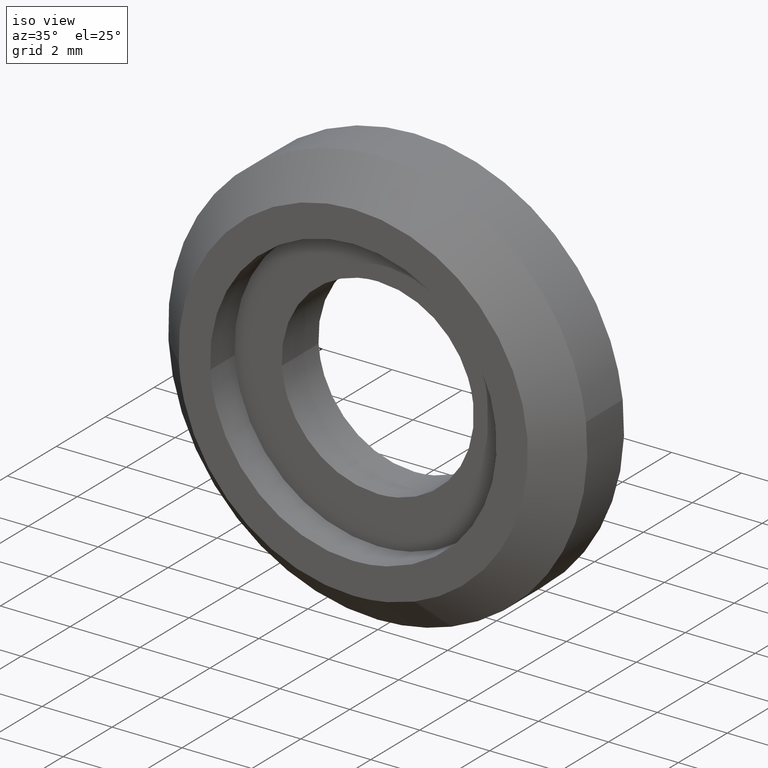
[diagram: clean part render]
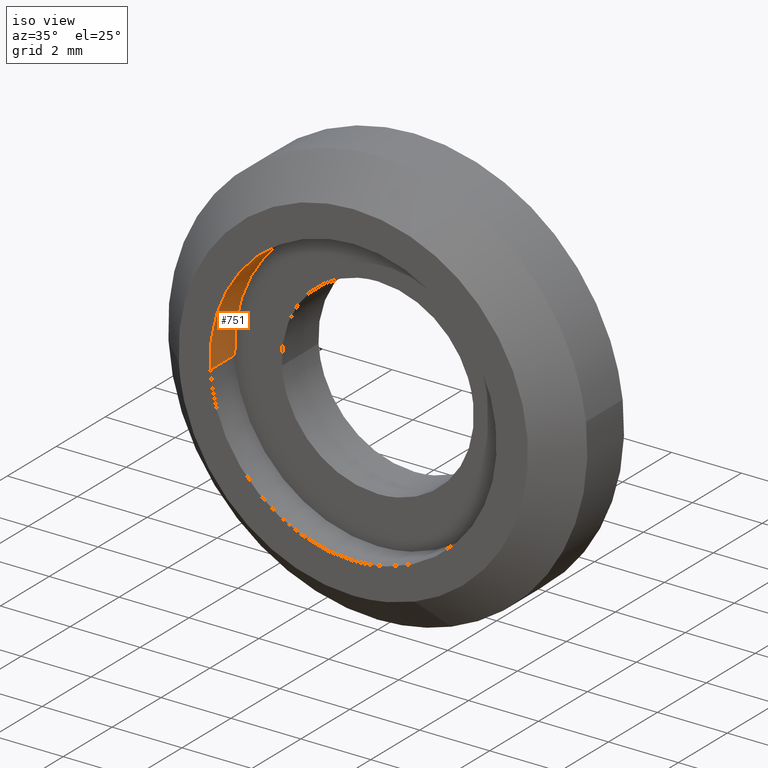
[diagram: same view with one face highlighted and labeled with its STEP entity id]
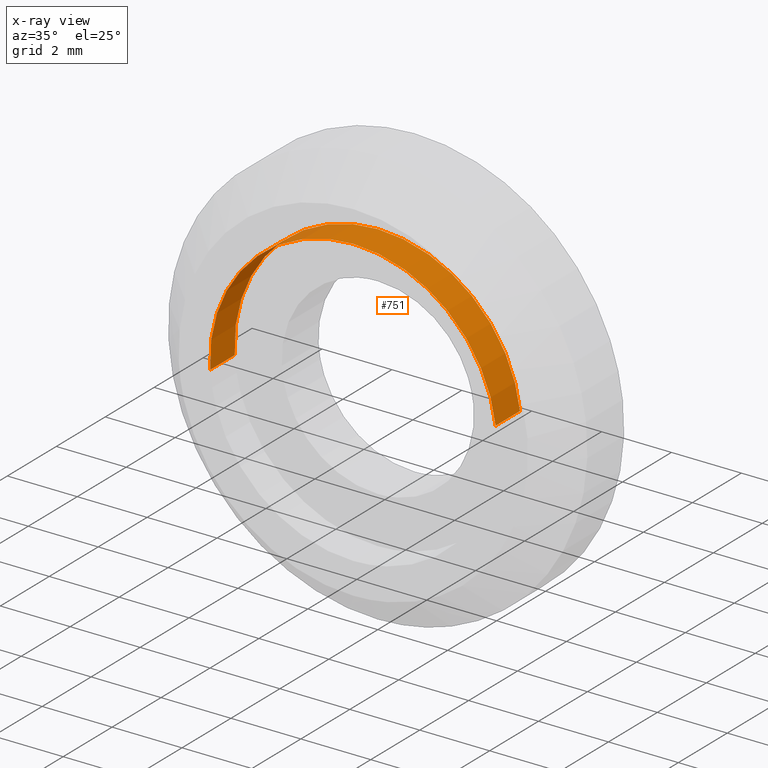
[diagram: x-ray of the same camera — body ghosted, the highlighted face saturated]
A machine part, iso view. The second image highlights one B-rep face of the part: STEP entity #751.
The next image is the same camera in x-ray: the body ghosted, the highlighted face saturated — about 0% of this face is hidden behind the body in this view.
In plain terms, the highlighted face is a freeform B-spline surface patch.
Its self-contained STEP definition (entity closure, byte-faithful):
#588=CARTESIAN_POINT('',(4.071339481019626,4.606795E-014,0.483936804012672));
#589=VERTEX_POINT('',#588);
#607=CARTESIAN_POINT('',(-4.092352866307658,-4.467954E-014,-0.250295860160577));
#608=VERTEX_POINT('',#607);
#622=CARTESIAN_POINT('',(-4.092352863930728,-1.0,-0.250295899024020));
#623=VERTEX_POINT('',#622);
#624=CARTESIAN_POINT('',(-4.092352863930728,-1.0,-0.250295899024020));
#625=CARTESIAN_POINT('',(-4.092352866307658,-4.467954E-014,-0.250295860160577));
#626=QUASI_UNIFORM_CURVE('',1,(#624,#625),.UNSPECIFIED.,.F.,.U.);
#627=EDGE_CURVE('',#623,#608,#626,.T.);
#644=CARTESIAN_POINT('',(4.071339475799119,-1.0,0.483936847932902));
#645=VERTEX_POINT('',#644);
#661=CARTESIAN_POINT('',(4.071339475799119,-1.0,0.483936847932902));
#662=CARTESIAN_POINT('',(4.071339481019626,4.606795E-014,0.483936804012672));
#663=QUASI_UNIFORM_CURVE('',1,(#661,#662),.UNSPECIFIED.,.F.,.U.);
#664=EDGE_CURVE('',#645,#589,#663,.T.);
#669=CARTESIAN_POINT('',(-4.092352673529653,-1.025000000000000,-0.250299012092914));
#670=CARTESIAN_POINT('',(-4.342651685622566,-1.025000000000000,3.842053661436740));
#671=CARTESIAN_POINT('',(-0.250299012092914,-1.025000000000000,4.092352673529653));
#672=CARTESIAN_POINT('',(3.614328312441953,-1.025000000000000,4.328723406603362));
#673=CARTESIAN_POINT('',(4.071339058091032,-1.025000000000000,0.483940362092710));
#674=CARTESIAN_POINT('',(-4.092352673529653,0.025625000000000,-0.250299012092914));
#675=CARTESIAN_POINT('',(-4.342651685622566,0.025625000000000,3.842053661436740));
#676=CARTESIAN_POINT('',(-0.250299012092914,0.025625000000000,4.092352673529653));
#677=CARTESIAN_POINT('',(3.614328312441953,0.025625000000000,4.328723406603362));
#678=CARTESIAN_POINT('',(4.071339058091032,0.025625000000000,0.483940362092710));
#686=(BOUNDED_SURFACE()B_SPLINE_SURFACE(2,1,((#669,#674),(#670,#675),(#671,#676),(#672,#677),(#673,#678)),.UNSPECIFIED.,.F.,.F.,.U.)B_SPLINE_SURFACE_WITH_KNOTS((3,2,3),(2,2),(0.0,6.793102422918757,13.314480748920760),(0.0,1.0),.UNSPECIFIED.)GEOMETRIC_REPRESENTATION_ITEM()RATIONAL_B_SPLINE_SURFACE(((1.0,1.0),(0.707106781186548,0.707106781186548),(1.0,1.0),(0.718822509939086,0.718822509939086),(0.977505800795127,0.977505800795127)))REPRESENTATION_ITEM('')SURFACE());
#687=CARTESIAN_POINT('',(0.0,0.0,4.100000000000001));
#688=VERTEX_POINT('',#687);
#689=CARTESIAN_POINT('',(0.0,0.0,4.100000000000001));
#690=CARTESIAN_POINT('',(3.641518761247744,0.0,4.100000000000001));
#691=CARTESIAN_POINT('',(4.071339481019626,4.606795E-014,0.483936804012673));
#699=(BOUNDED_CURVE()B_SPLINE_CURVE(2,(#689,#690,#691),.UNSPECIFIED.,.F.,.U.)B_SPLINE_CURVE_WITH_KNOTS((3,3),(0.0,0.229562621213272),.UNSPECIFIED.)CURVE()GEOMETRIC_REPRESENTATION_ITEM()RATIONAL_B_SPLINE_CURVE((1.0,0.731050659814366,0.956027043681484))REPRESENTATION_ITEM(''));
#700=EDGE_CURVE('',#688,#589,#699,.T.);
#701=ORIENTED_EDGE('',*,*,#700,.T.);
#702=ORIENTED_EDGE('',*,*,#664,.F.);
#703=CARTESIAN_POINT('',(0.0,-1.0,4.100000000000001));
#704=VERTEX_POINT('',#703);
#705=CARTESIAN_POINT('',(0.0,-1.0,4.100000000000001));
#706=CARTESIAN_POINT('',(3.641518721687739,-1.0,4.100000000000001));
#707=CARTESIAN_POINT('',(4.071339475799119,-1.0,0.483936847932902));
#715=(BOUNDED_CURVE()B_SPLINE_CURVE(2,(#705,#706,#707),.UNSPECIFIED.,.F.,.U.)B_SPLINE_CURVE_WITH_KNOTS((3,3),(0.0,0.229562619390121),.UNSPECIFIED.)CURVE()GEOMETRIC_REPRESENTATION_ITEM()RATIONAL_B_SPLINE_CURVE((1.0,0.731050661950319,0.956027040108030))REPRESENTATION_ITEM(''));
#716=EDGE_CURVE('',#704,#645,#715,.T.);
#717=ORIENTED_EDGE('',*,*,#716,.F.);
#718=CARTESIAN_POINT('',(-4.092352863930728,-1.0,-0.250295899024020));
#719=CARTESIAN_POINT('',(-4.100000000000001,-1.0,-0.125264768625487));
#720=CARTESIAN_POINT('',(-4.100000000000001,-1.0,0.0));
#721=CARTESIAN_POINT('',(-4.100000000000001,-1.0,4.100000000000001));
#722=CARTESIAN_POINT('',(0.0,-1.0,4.100000000000001));
#730=(BOUNDED_CURVE()B_SPLINE_CURVE(2,(#718,#719,#720,#721,#722),.UNSPECIFIED.,.F.,.U.)B_SPLINE_CURVE_WITH_KNOTS((3,2,3),(0.739333093499008,0.750000000000000,1.0),.UNSPECIFIED.)CURVE()GEOMETRIC_REPRESENTATION_ITEM()RATIONAL_B_SPLINE_CURVE((0.976072322982185,0.987502941680569,1.0,0.707106781186547,1.0))REPRESENTATION_ITEM(''));
#731=EDGE_CURVE('',#623,#704,#730,.T.);
#732=ORIENTED_EDGE('',*,*,#731,.F.);
#733=ORIENTED_EDGE('',*,*,#627,.T.);
#734=CARTESIAN_POINT('',(-4.092352866307658,-4.467954E-014,-0.250295860160578));
#735=CARTESIAN_POINT('',(-4.100000000000001,0.0,-0.125264749139284));
#736=CARTESIAN_POINT('',(-4.100000000000001,0.0,0.0));
#737=CARTESIAN_POINT('',(-4.100000000000001,0.0,4.100000000000001));
#738=CARTESIAN_POINT('',(0.0,0.0,4.100000000000001));
#746=(BOUNDED_CURVE()B_SPLINE_CURVE(2,(#734,#735,#736,#737,#738),.UNSPECIFIED.,.F.,.U.)B_SPLINE_CURVE_WITH_KNOTS((3,2,3),(0.739333095137616,0.750000000000000,1.0),.UNSPECIFIED.)CURVE()GEOMETRIC_REPRESENTATION_ITEM()RATIONAL_B_SPLINE_CURVE((0.976072326494038,0.987502943600318,1.0,0.707106781186547,1.0))REPRESENTATION_ITEM(''));
#747=EDGE_CURVE('',#608,#688,#746,.T.);
#748=ORIENTED_EDGE('',*,*,#747,.T.);
#749=EDGE_LOOP('',(#701,#702,#717,#732,#733,#748));
#750=FACE_OUTER_BOUND('',#749,.T.);
#751=ADVANCED_FACE('',(#750),#686,.F.);